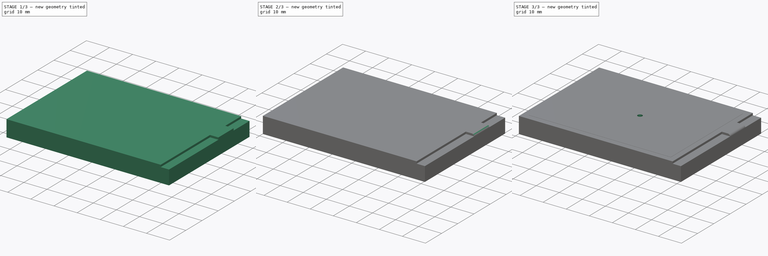
[diagram: build sequence overview — one tinted view per stage of 3, left to right]
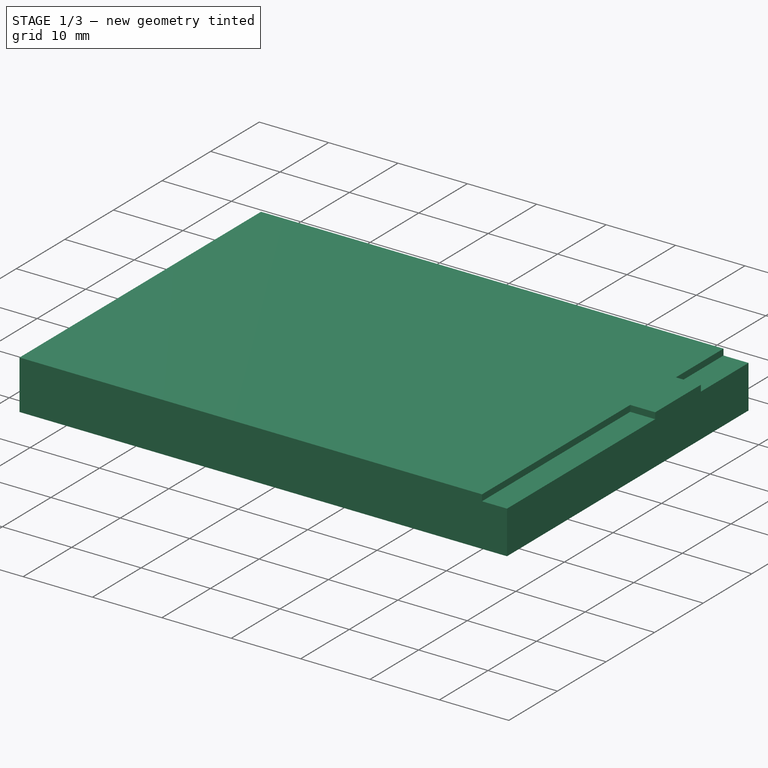
[diagram: stage 1 of 3 — iso view after this stage's code; geometry added in this stage tinted green]
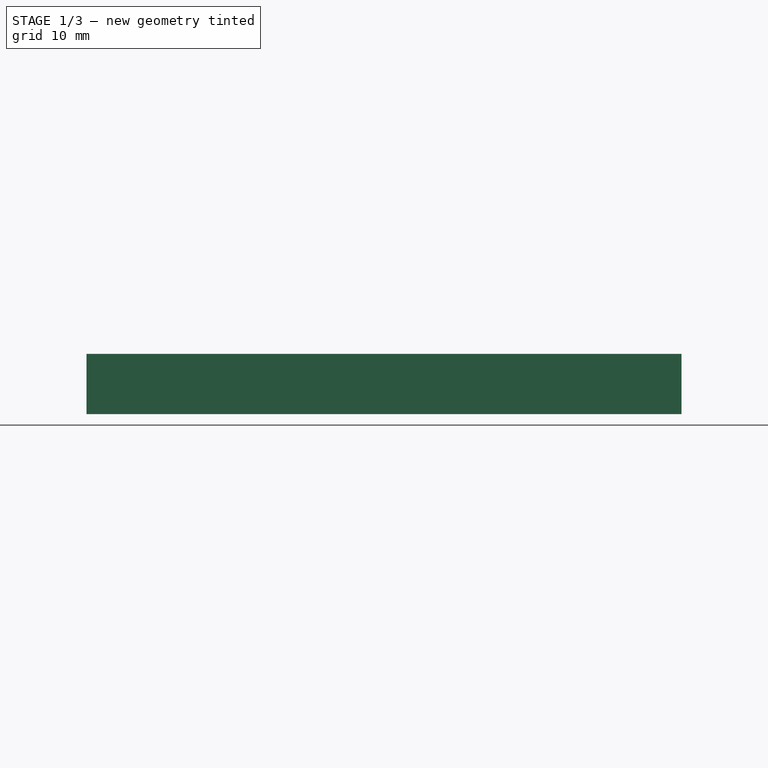
[diagram: stage 1 of 3 — front view after this stage's code; geometry added in this stage tinted green]
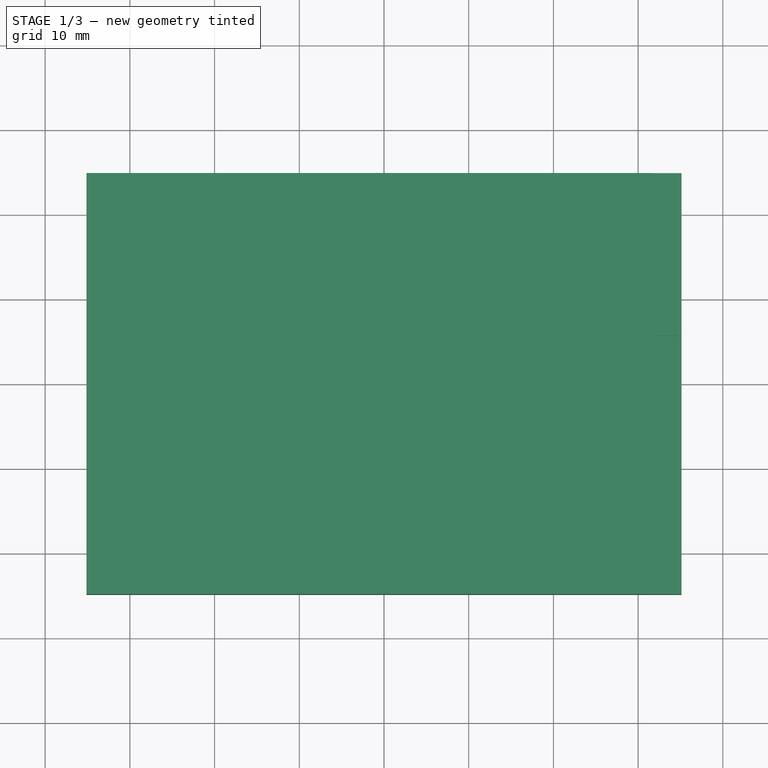
[diagram: stage 1 of 3 — top view after this stage's code; geometry added in this stage tinted green]
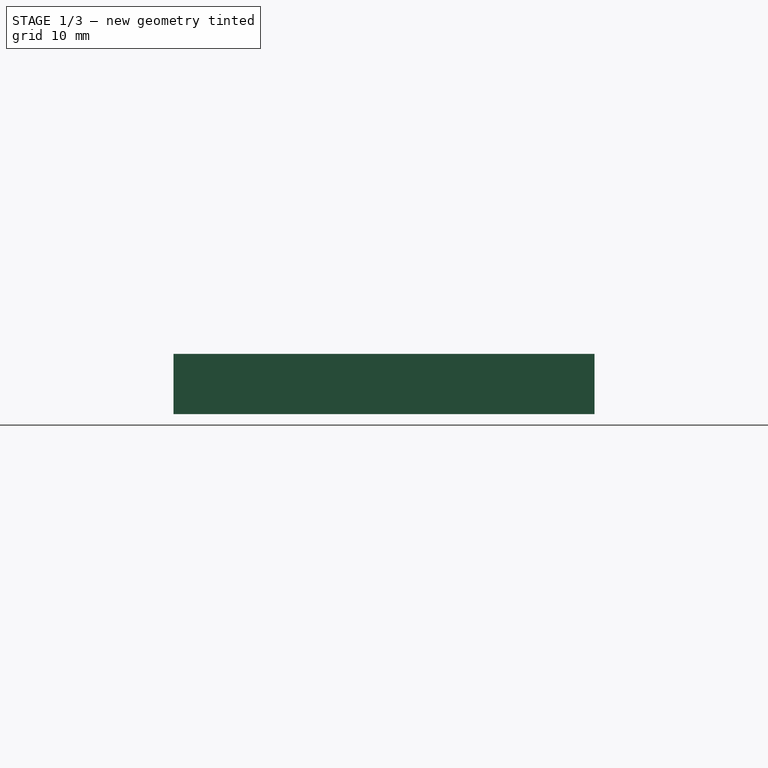
[diagram: stage 1 of 3 — right view after this stage's code; geometry added in this stage tinted green]
FCSTD DOCUMENT  (FreeCAD 0.18.4R)
Label: iunikerscreen28
License: All rights reserved
LicenseURL: http://en.wikipedia.org/wiki/All_rights_reserved
objects: Sketcher::SketchObject×5, PartDesign::Pad×3, PartDesign::Pocket×2, PartDesign::Fillet×1, PartDesign::Body×1
note: 17 computed .brp shape members not serialized (recipe doc carries the construction recipe); baked Part::Feature solids carry a one-line shape summary decoded from their .brp

FEATURE [Sketcher::SketchObject] Sketch
  MapMode = 5
  Support = -> [XY_Plane]
  sketch-geometry (6):
    g0: LineSegment StartX=-35.125 StartY=-24.85 StartZ=0 EndX=35.125 EndY=-24.85 EndZ=0
    g1: LineSegment StartX=35.125 StartY=-24.85 StartZ=0 EndX=35.125 EndY=24.85 EndZ=0
    g2: LineSegment StartX=35.125 StartY=24.85 StartZ=0 EndX=-35.125 EndY=24.85 EndZ=0
    g3: LineSegment StartX=-35.125 StartY=24.85 StartZ=0 EndX=-35.125 EndY=-24.85 EndZ=0
    g4: LineSegment [constr] StartX=-35.125 StartY=24.85 StartZ=0 EndX=35.125 EndY=-24.85 EndZ=0
    g5: LineSegment [constr] StartX=35.125 StartY=24.85 StartZ=0 EndX=-35.125 EndY=-24.85 EndZ=0
  constraints (16):
    c: Coincident(g0,g1)
    c: Coincident(g1,g2)
    c: Coincident(g2,g3)
    c: Coincident(g3,g0)
    c: Horizontal(g0)
    c: Horizontal(g2)
    c: Vertical(g1)
    c: Vertical(g3)
    c: Coincident(g4,g2)
    c: Coincident(g4,g0)
    c: Coincident(g5,g1)
    c: Coincident(g5,g0)
    c: PointOnObject(g-1,g5)
    c: PointOnObject(g-1,g4)
    c: Distance(g2) = 70.25
    c: Distance(g3) = 49.7
FEATURE [PartDesign::Pad] Pad
  Length = 7.1
  Length2 = 100
  Profile = -> Sketch
  Type = 0
FEATURE [Sketcher::SketchObject] Sketch001
  ExternalGeometry = -> [Pad]
  MapMode = 5
  Placement = pos=(0,0,7.1) rot=(0,0,1;0rad)
  Support = -> [Pad]
  sketch-geometry (8):
    g0: LineSegment StartX=35.125 StartY=24.85 StartZ=0 EndX=31.525 EndY=24.85 EndZ=0
    g1: LineSegment StartX=31.525 StartY=24.85 StartZ=0 EndX=31.525 EndY=15.05 EndZ=0
    g2: LineSegment StartX=31.525 StartY=15.05 StartZ=0 EndX=35.125 EndY=15.05 EndZ=0
    g3: LineSegment StartX=35.125 StartY=15.05 StartZ=0 EndX=35.125 EndY=24.85 EndZ=0
    g4: LineSegment StartX=35.125 StartY=-24.85 StartZ=0 EndX=31.525 EndY=-24.85 EndZ=0
    g5: LineSegment StartX=31.525 StartY=-24.85 StartZ=0 EndX=31.525 EndY=5.65 EndZ=0
    g6: LineSegment StartX=31.525 StartY=5.65 StartZ=0 EndX=35.125 EndY=5.65 EndZ=0
    g7: LineSegment StartX=35.125 StartY=5.65 StartZ=0 EndX=35.125 EndY=-24.85 EndZ=0
  constraints (22):
    c: Coincident(g0,g1)
    c: Coincident(g1,g2)
    c: Coincident(g2,g3)
    c: Coincident(g3,g0)
    c: Horizontal(g0)
    c: Horizontal(g2)
    c: Vertical(g1)
    c: Vertical(g3)
    c: Coincident(g0,g-4)
    c: Coincident(g4,g5)
    c: Coincident(g5,g6)
    c: Coincident(g6,g7)
    c: Coincident(g7,g4)
    c: Horizontal(g4)
    c: Horizontal(g6)
    c: Vertical(g5)
    c: Vertical(g7)
    c: Coincident(g4,g-5)
    c: PointOnObject(g5,g1)
    c: Distance(g0) = 3.6
    c: Distance(g3) = 9.8
    c: Distance(g7) = 30.5
FEATURE [PartDesign::Pocket] Pocket
  BaseFeature = -> Pad
  Length = 0.9
  Length2 = 100
  Profile = -> Sketch001
  Type = 0
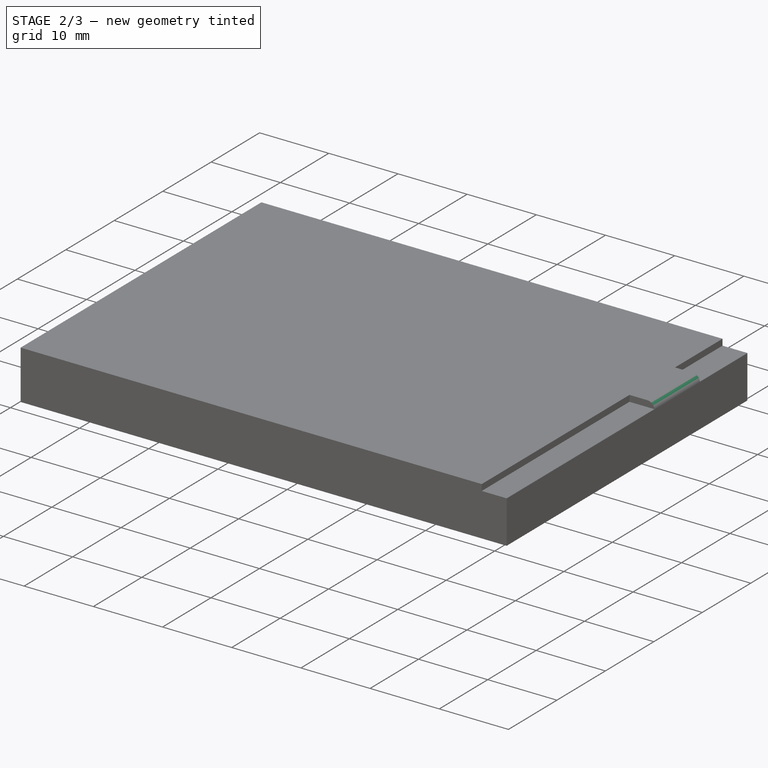
[diagram: stage 2 of 3 — iso view after this stage's code; geometry added in this stage tinted green]
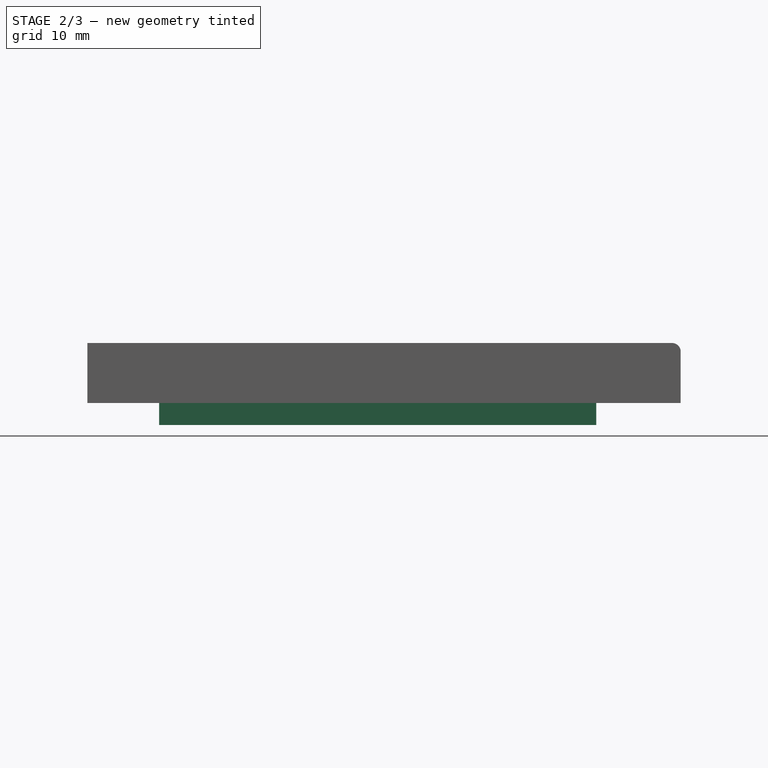
[diagram: stage 2 of 3 — front view after this stage's code; geometry added in this stage tinted green]
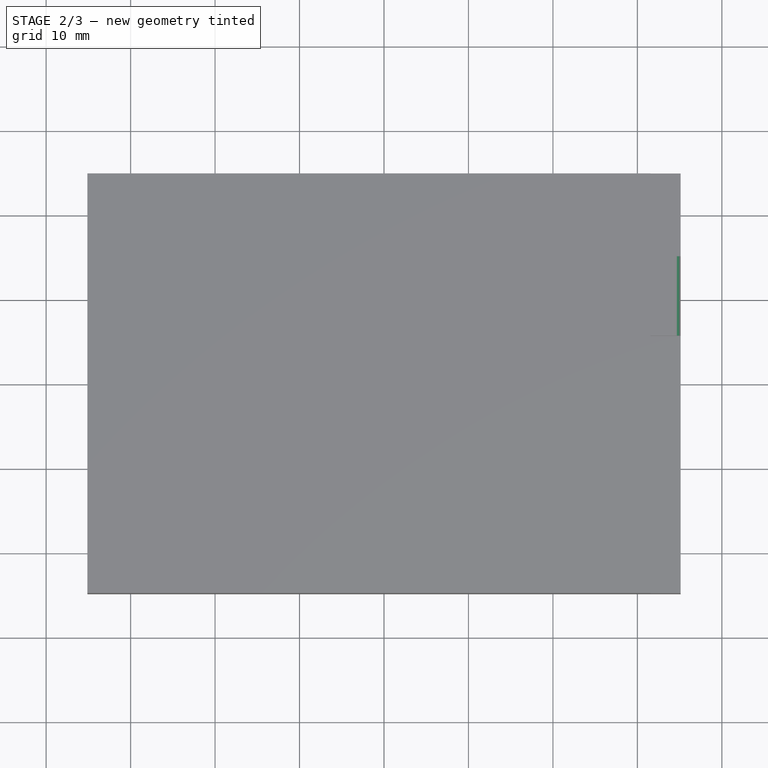
[diagram: stage 2 of 3 — top view after this stage's code; geometry added in this stage tinted green]
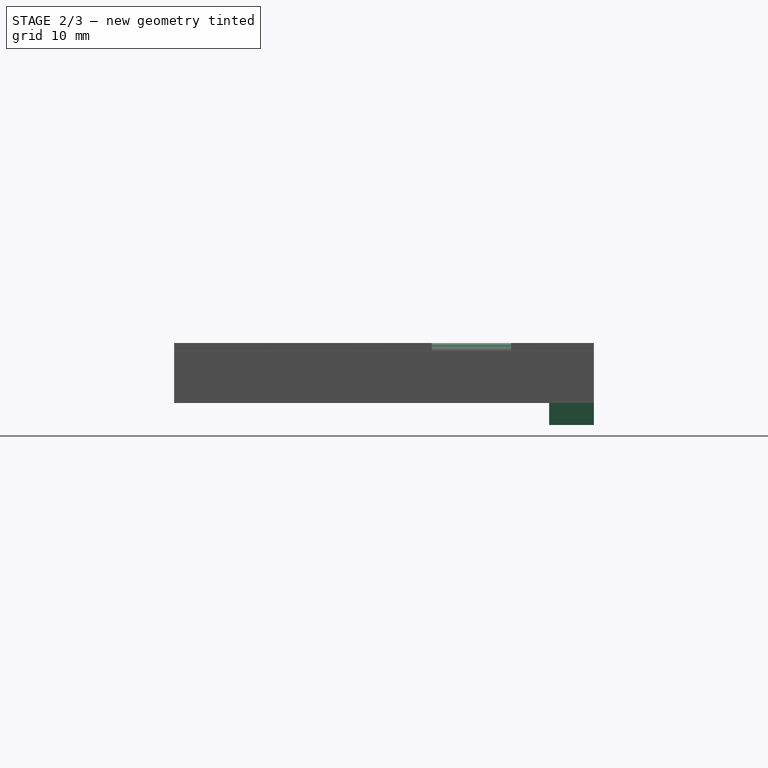
[diagram: stage 2 of 3 — right view after this stage's code; geometry added in this stage tinted green]
FEATURE [Sketcher::SketchObject] Sketch002
  ExternalGeometry = -> [Pocket]
  MapMode = 5
  Placement = pos=(0,0,0) rot=(1,0,0;3.14159rad)
  Support = -> [Pocket]
  sketch-geometry (4):
    g0: LineSegment StartX=25.125 StartY=-24.85 StartZ=0 EndX=-26.625 EndY=-24.85 EndZ=0
    g1: LineSegment StartX=-26.625 StartY=-24.85 StartZ=0 EndX=-26.625 EndY=-19.55 EndZ=0
    g2: LineSegment StartX=-26.625 StartY=-19.55 StartZ=0 EndX=25.125 EndY=-19.55 EndZ=0
    g3: LineSegment StartX=25.125 StartY=-19.55 StartZ=0 EndX=25.125 EndY=-24.85 EndZ=0
  constraints (12):
    c: Coincident(g0,g1)
    c: Coincident(g1,g2)
    c: Coincident(g2,g3)
    c: Coincident(g3,g0)
    c: Horizontal(g0)
    c: Horizontal(g2)
    c: Vertical(g1)
    c: Vertical(g3)
    c: Distance(g0,g-3) = 10
    c: Distance(g0,g-3) = 8.5
    c: Distance(g1) = 5.3
    c: PointOnObject(g0,g-3)
FEATURE [PartDesign::Pad] Pad001
  BaseFeature = -> Pocket
  Length = 2.6
  Length2 = 100
  Profile = -> Sketch002
  Type = 0
FEATURE [PartDesign::Fillet] Fillet
  Base = -> Pad001 [Edge17]
  BaseFeature = -> Pad001
  Radius = 1
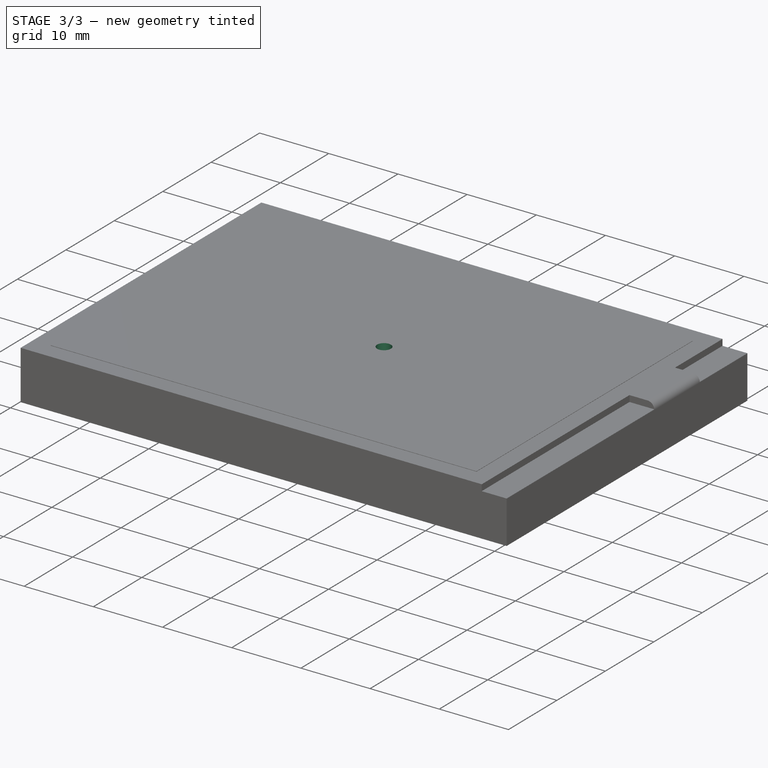
[diagram: stage 3 of 3 — iso view after this stage's code; geometry added in this stage tinted green]
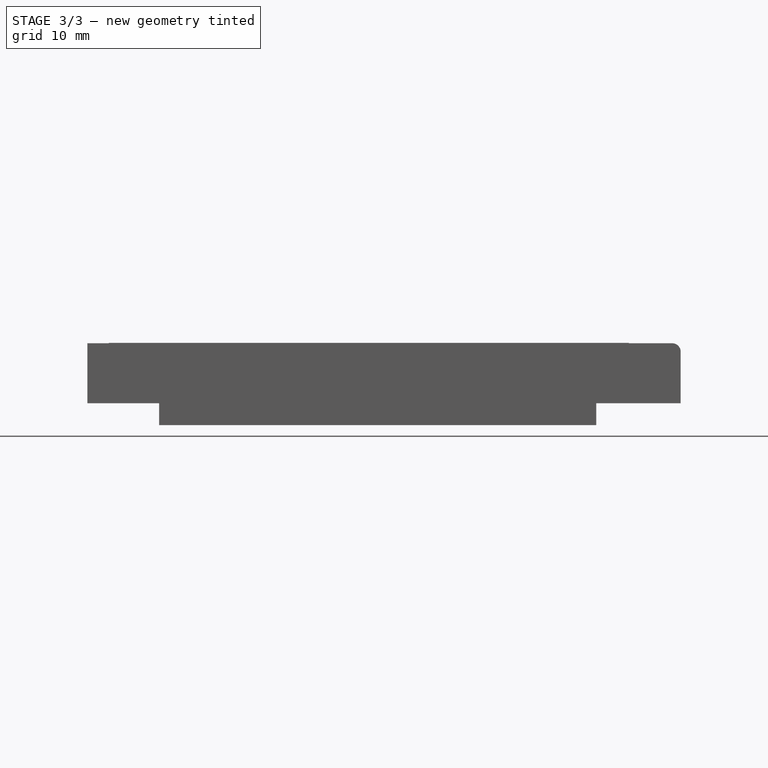
[diagram: stage 3 of 3 — front view after this stage's code; geometry added in this stage tinted green]
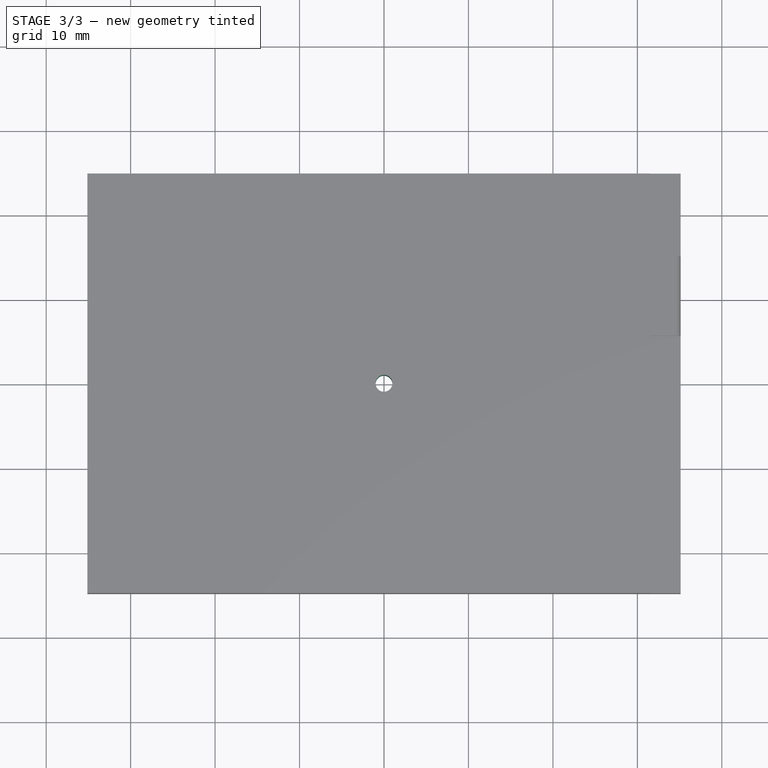
[diagram: stage 3 of 3 — top view after this stage's code; geometry added in this stage tinted green]
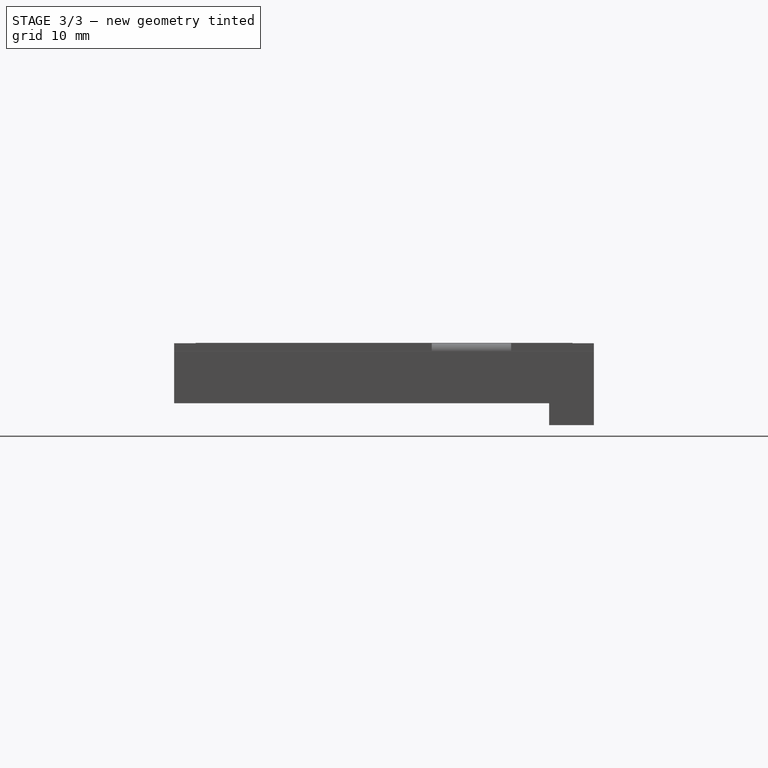
[diagram: stage 3 of 3 — right view after this stage's code; geometry added in this stage tinted green]
FEATURE [Sketcher::SketchObject] Sketch003
  ExternalGeometry = -> [Fillet]
  MapMode = 5
  Placement = pos=(0,0,7.1) rot=(0,0,1;0rad)
  Support = -> [Fillet]
  sketch-geometry (4):
    g0: LineSegment StartX=-32.585 StartY=-22.31 StartZ=0 EndX=28.985 EndY=-22.31 EndZ=0
    g1: LineSegment StartX=28.985 StartY=-22.31 StartZ=0 EndX=28.985 EndY=22.31 EndZ=0
    g2: LineSegment StartX=28.985 StartY=22.31 StartZ=0 EndX=-32.585 EndY=22.31 EndZ=0
    g3: LineSegment StartX=-32.585 StartY=22.31 StartZ=0 EndX=-32.585 EndY=-22.31 EndZ=0
  constraints (12):
    c: Coincident(g0,g1)
    c: Coincident(g1,g2)
    c: Coincident(g2,g3)
    c: Coincident(g3,g0)
    c: Horizontal(g0)
    c: Horizontal(g2)
    c: Vertical(g1)
    c: Vertical(g3)
    c: Distance(g1,g-3) = 2.54
    c: Distance(g-3,g1) = 2.54
    c: Distance(g-3,g3) = 2.54
    c: Distance(g0,g-4) = 2.54
FEATURE [PartDesign::Pad] Pad002
  BaseFeature = -> Fillet
  Length = 0.05
  Length2 = 100
  Profile = -> Sketch003
  Type = 0
FEATURE [Sketcher::SketchObject] Sketch004
  MapMode = 5
  Placement = pos=(0,0,7.15) rot=(0,0,1;0rad)
  Support = -> [Pad002]
  sketch-geometry (1):
    g0: Circle CenterX=0 CenterY=0 CenterZ=0 NormalX=0 NormalY=0 NormalZ=1 AngleXU=0 Radius=1
  constraints (2):
    c: Coincident(g0,g-1)
    c: Radius(g0) = 1
FEATURE [PartDesign::Pocket] Pocket001
  BaseFeature = -> Pad002
  Length = 5
  Length2 = 100
  Profile = -> Sketch004
  Type = 1
FEATURE [PartDesign::Body] Body
  Group = -> [Sketch,Pad,Sketch001,Pocket,Sketch002,Pad001,Fillet,Sketch003,Pad002,Sketch004,Pocket001]
  Origin = -> Origin
  Tip = -> Pocket001
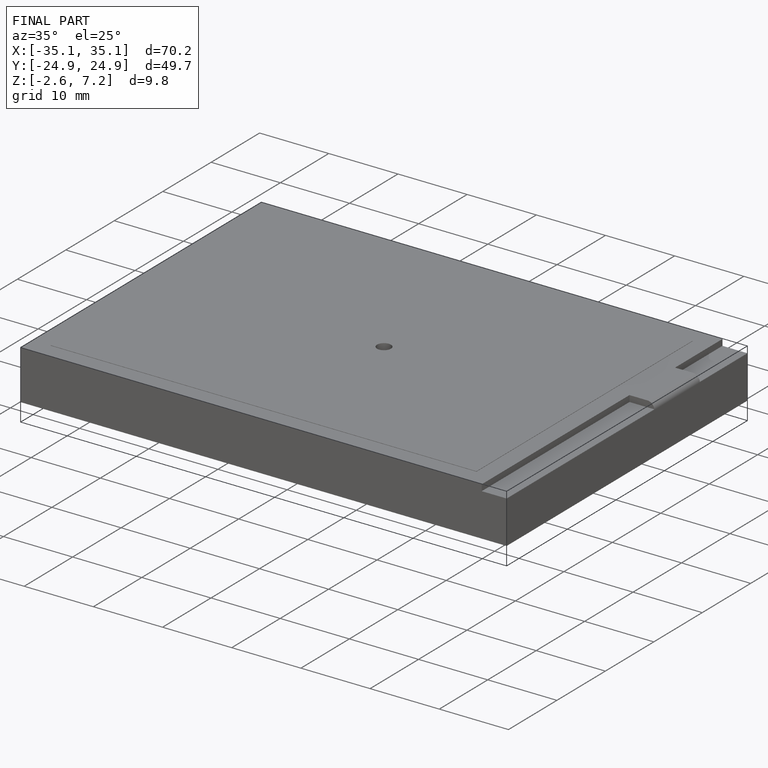
[diagram: finished part — iso view with bounding-box wireframe]
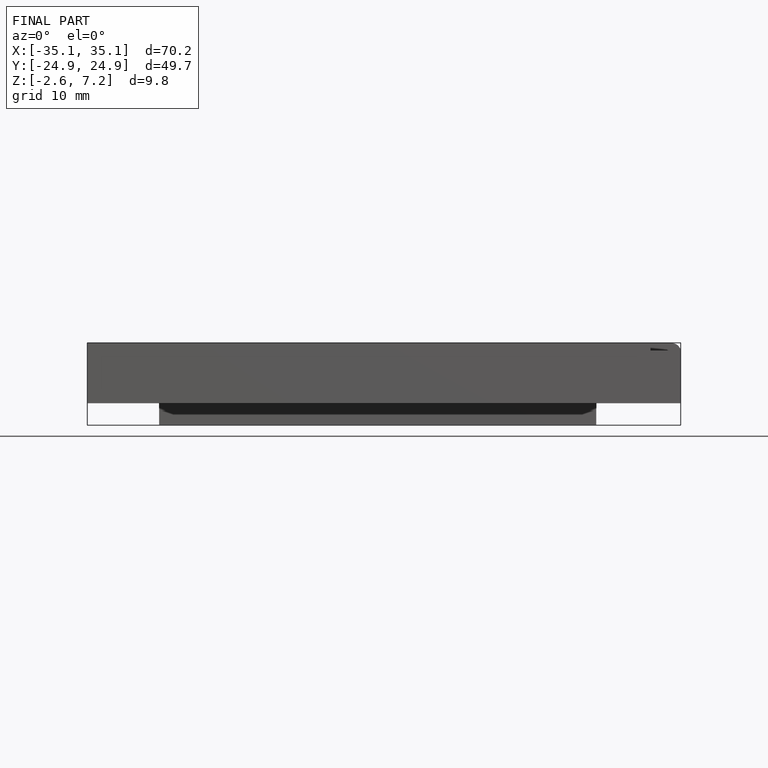
[diagram: finished part — front view with bounding-box wireframe]
